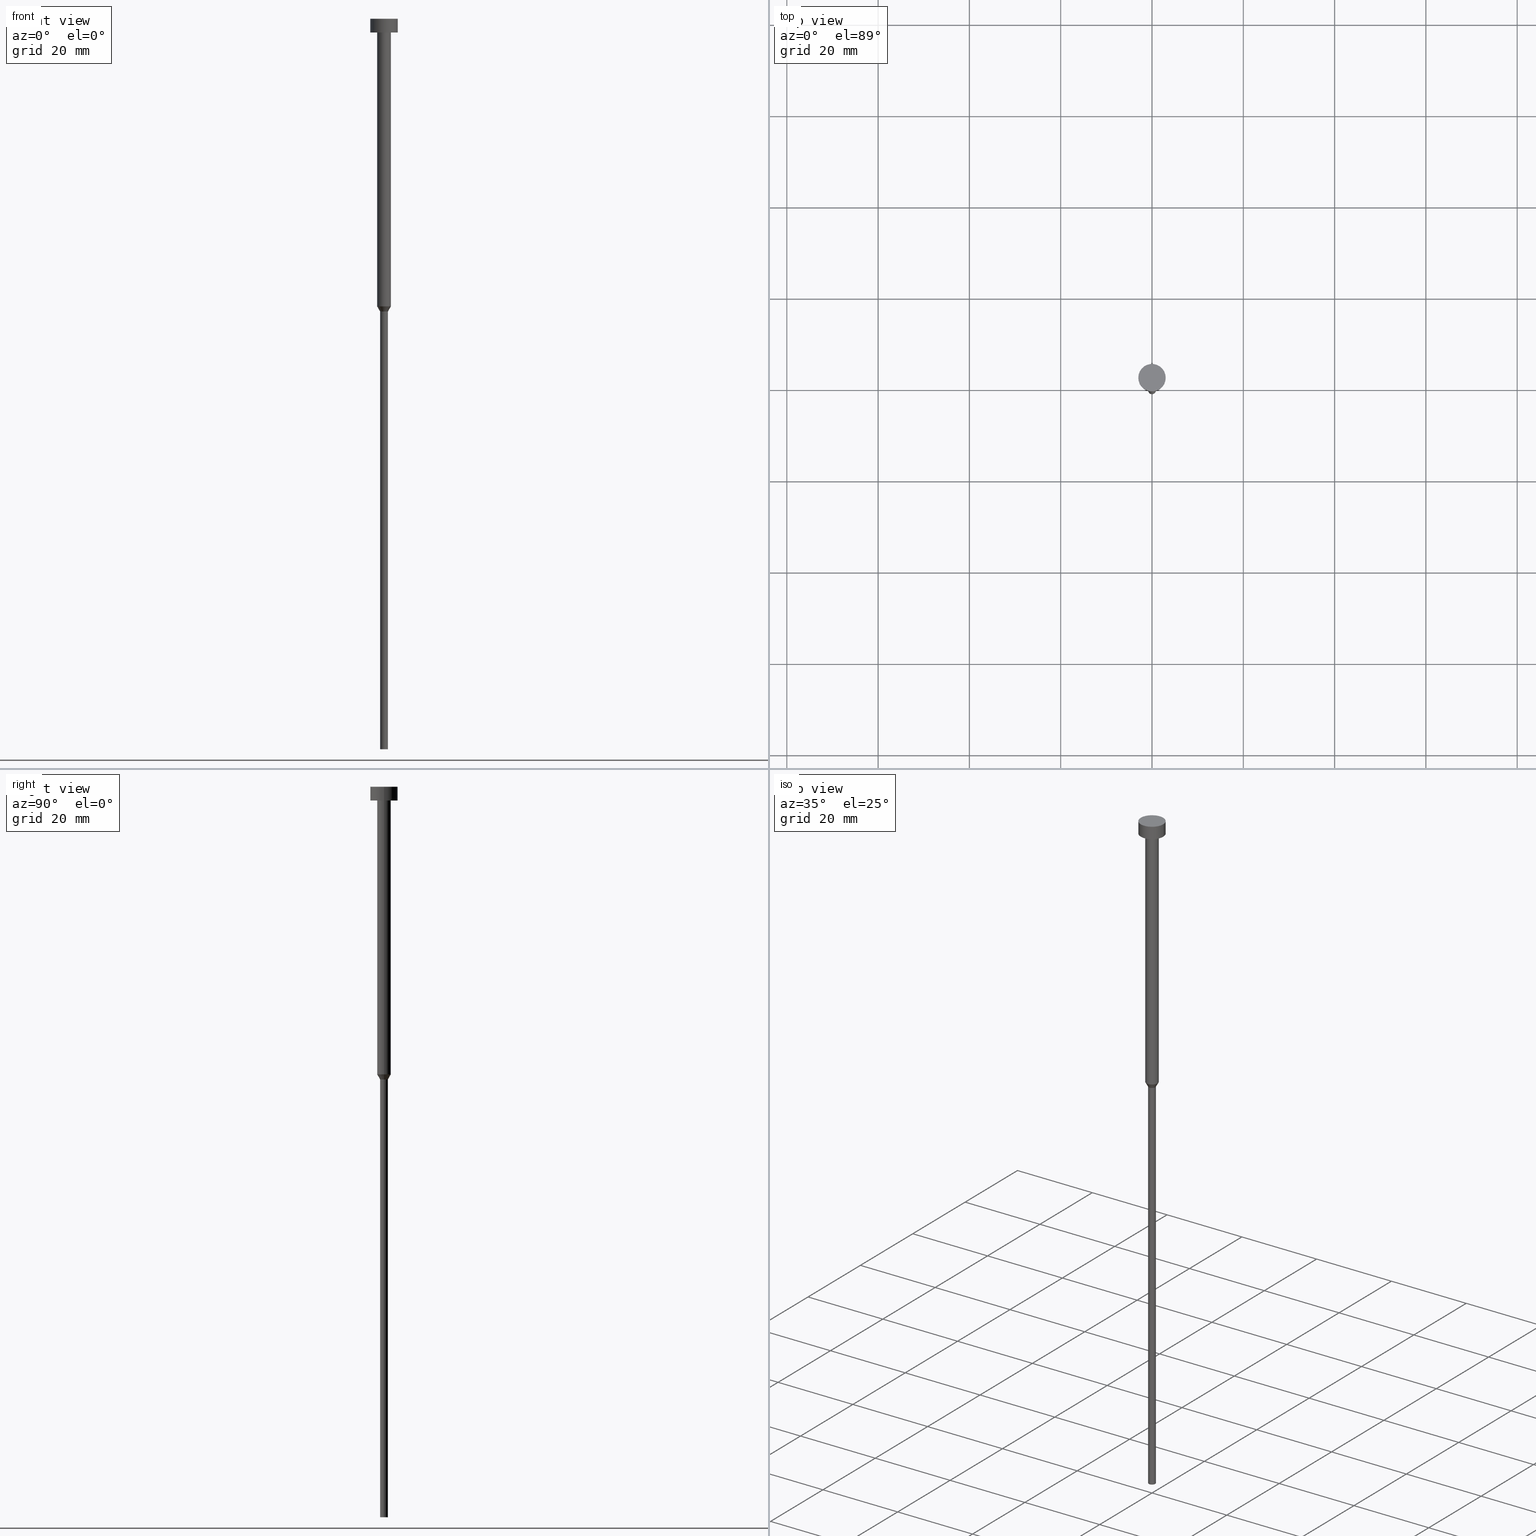
[diagram: canonical four-view strip — front | top / right | iso, engineering-drawing reading convention]
A machine part, canonical four-view strip (front | top / right | iso — engineering-drawing reading convention). The complete STEP part file that produces these views, byte-faithful:
ISO-10303-21;
HEADER;
FILE_DESCRIPTION (( 'STEP AP203' ),
    '1' );
FILE_NAME ('a8fe.STEP',
    '2023-02-13T10:02:04',
    ( '' ),
    ( '' ),
    'SwSTEP 2.0',
    'SolidWorks 2019',
    '' );
FILE_SCHEMA (( 'CONFIG_CONTROL_DESIGN' ));
ENDSEC;

DATA;
#1 = CYLINDRICAL_SURFACE ( 'NONE', #282, 0.8499999999999998668 ) ;
#2 = APPROVAL_DATE_TIME ( #190, #56 ) ;
#3 = EDGE_CURVE ( 'NONE', #101, #25, #151, .T. ) ;
#4 = VECTOR ( 'NONE', #251, 1000.000000000000000 ) ;
#5 = CYLINDRICAL_SURFACE ( 'NONE', #294, 3.000000000000000000 ) ;
#6 = CARTESIAN_POINT ( 'NONE',  ( -1.500000000000000000, 1.836970198721029934E-16, 0.000000000000000000 ) ) ;
#7 = AXIS2_PLACEMENT_3D ( 'NONE', #332, #173, #274 ) ;
#8 = PERSON_AND_ORGANIZATION ( #279, #80 ) ;
#9 = DATE_AND_TIME ( #253, #275 ) ;
#10 = EDGE_CURVE ( 'NONE', #290, #165, #296, .T. ) ;
#11 = DIRECTION ( 'NONE',  ( 1.000000000000000000, 0.000000000000000000, 0.000000000000000000 ) ) ;
#12 = APPROVAL_STATUS ( 'not_yet_approved' ) ;
#13 = DIRECTION ( 'NONE',  ( 0.000000000000000000, -0.000000000000000000, 1.000000000000000000 ) ) ;
#14 = ORIENTED_EDGE ( 'NONE', *, *, #195, .F. ) ;
#15 = PERSON_AND_ORGANIZATION_ROLE ( 'design_owner' ) ;
#16 = PLANE ( 'NONE',  #29 ) ;
#17 = COORDINATED_UNIVERSAL_TIME_OFFSET ( 1, 0, .AHEAD. ) ;
#18 = CARTESIAN_POINT ( 'NONE',  ( 0.000000000000000000, 0.000000000000000000, -3.000000000000000888 ) ) ;
#19 = EDGE_LOOP ( 'NONE', ( #164, #269 ) ) ;
#20 = EDGE_CURVE ( 'NONE', #290, #238, #250, .T. ) ;
#21 = CARTESIAN_POINT ( 'NONE',  ( 3.000000000000000000, 0.000000000000000000, 0.000000000000000000 ) ) ;
#22 = ORIENTED_EDGE ( 'NONE', *, *, #211, .F. ) ;
#23 = ORIENTED_EDGE ( 'NONE', *, *, #287, .T. ) ;
#24 = ADVANCED_FACE ( 'NONE', ( #52 ), #1, .T. ) ;
#25 = VERTEX_POINT ( 'NONE', #81 ) ;
#26 = APPROVAL_PERSON_ORGANIZATION ( #256, #56, #94 ) ;
#27 = DIRECTION ( 'NONE',  ( -0.000000000000000000, -0.000000000000000000, 1.000000000000000000 ) ) ;
#28 = SHAPE_DEFINITION_REPRESENTATION ( #288, #219 ) ;
#29 = AXIS2_PLACEMENT_3D ( 'NONE', #237, #254, #46 ) ;
#30 = PLANE ( 'NONE',  #102 ) ;
#31 = AXIS2_PLACEMENT_3D ( 'NONE', #207, #286, #65 ) ;
#32 = CARTESIAN_POINT ( 'NONE',  ( -1.500000000000000000, 1.836970198721029934E-16, -63.00000000000000000 ) ) ;
#33 = ADVANCED_FACE ( 'NONE', ( #197 ), #343, .T. ) ;
#34 = AXIS2_PLACEMENT_3D ( 'NONE', #299, #55, #272 ) ;
#35 = DIRECTION ( 'NONE',  ( 1.000000000000000000, 0.000000000000000000, 0.000000000000000000 ) ) ;
#36 = DIRECTION ( 'NONE',  ( 1.000000000000000000, 0.000000000000000000, 0.000000000000000000 ) ) ;
#37 = DIRECTION ( 'NONE',  ( 1.000000000000000000, 0.000000000000000000, 0.000000000000000000 ) ) ;
#38 = DATE_TIME_ROLE ( 'classification_date' ) ;
#39 = DIRECTION ( 'NONE',  ( -0.000000000000000000, -0.000000000000000000, 1.000000000000000000 ) ) ;
#40 = EDGE_LOOP ( 'NONE', ( #210, #310, #266, #162 ) ) ;
#41 =( GEOMETRIC_REPRESENTATION_CONTEXT ( 3 ) GLOBAL_UNCERTAINTY_ASSIGNED_CONTEXT ( ( #84 ) ) GLOBAL_UNIT_ASSIGNED_CONTEXT ( ( #344, #239, #92 ) ) REPRESENTATION_CONTEXT ( 'NONE', 'WORKASPACE' ) );
#42 = DIRECTION ( 'NONE',  ( -0.000000000000000000, -0.000000000000000000, 1.000000000000000000 ) ) ;
#43 = CARTESIAN_POINT ( 'NONE',  ( 0.000000000000000000, 0.000000000000000000, -3.000000000000000888 ) ) ;
#44 = EDGE_LOOP ( 'NONE', ( #70, #182 ) ) ;
#45 = APPROVAL_STATUS ( 'not_yet_approved' ) ;
#46 = DIRECTION ( 'NONE',  ( -1.000000000000000000, 0.000000000000000000, -0.000000000000000000 ) ) ;
#47 = ORIENTED_EDGE ( 'NONE', *, *, #106, .F. ) ;
#48 = DIRECTION ( 'NONE',  ( 1.000000000000000000, 0.000000000000000000, 0.000000000000000000 ) ) ;
#49 = CARTESIAN_POINT ( 'NONE',  ( 0.000000000000000000, 0.000000000000000000, -160.0000000000000000 ) ) ;
#50 = ORIENTED_EDGE ( 'NONE', *, *, #247, .F. ) ;
#51 = EDGE_CURVE ( 'NONE', #25, #313, #217, .T. ) ;
#52 = FACE_OUTER_BOUND ( 'NONE', #53, .T. ) ;
#53 = EDGE_LOOP ( 'NONE', ( #268, #105, #22, #50 ) ) ;
#54 = CIRCLE ( 'NONE', #303, 0.8499999999999998668 ) ;
#55 = DIRECTION ( 'NONE',  ( -0.000000000000000000, -0.000000000000000000, 1.000000000000000000 ) ) ;
#56 = APPROVAL ( #12, 'NEUR�EN�' ) ;
#57 = DIRECTION ( 'NONE',  ( 1.000000000000000000, 0.000000000000000000, 0.000000000000000000 ) ) ;
#58 = CIRCLE ( 'NONE', #314, 0.8499999999999999778 ) ;
#59 = EDGE_CURVE ( 'NONE', #78, #185, #69, .T. ) ;
#60 = DIRECTION ( 'NONE',  ( -0.000000000000000000, -0.000000000000000000, 1.000000000000000000 ) ) ;
#61 = CIRCLE ( 'NONE', #335, 1.500000000000000000 ) ;
#62 = AXIS2_PLACEMENT_3D ( 'NONE', #18, #281, #37 ) ;
#63 = EDGE_CURVE ( 'NONE', #101, #75, #64, .T. ) ;
#64 = LINE ( 'NONE', #66, #222 ) ;
#65 = DIRECTION ( 'NONE',  ( 1.000000000000000000, 0.000000000000000000, 0.000000000000000000 ) ) ;
#66 = CARTESIAN_POINT ( 'NONE',  ( -3.000000000000000000, 3.673940397442059868E-16, 0.000000000000000000 ) ) ;
#67 = ORIENTED_EDGE ( 'NONE', *, *, #195, .T. ) ;
#68 = AXIS2_PLACEMENT_3D ( 'NONE', #167, #324, #244 ) ;
#69 = LINE ( 'NONE', #74, #301 ) ;
#70 = ORIENTED_EDGE ( 'NONE', *, *, #302, .F. ) ;
#71 = LOCAL_TIME ( 11, 2, 4.000000000000000000, #113 ) ;
#72 = DATE_TIME_ROLE ( 'creation_date' ) ;
#73 = EDGE_CURVE ( 'NONE', #160, #165, #61, .T. ) ;
#74 = CARTESIAN_POINT ( 'NONE',  ( -0.8499999999999998668, 1.040949779275250017E-16, 0.000000000000000000 ) ) ;
#75 = VERTEX_POINT ( 'NONE', #284 ) ;
#76 = PERSON_AND_ORGANIZATION ( #279, #80 ) ;
#77 = CARTESIAN_POINT ( 'NONE',  ( 0.000000000000000000, 0.000000000000000000, -64.12583302491977122 ) ) ;
#78 = VERTEX_POINT ( 'NONE', #289 ) ;
#79 = EDGE_CURVE ( 'NONE', #185, #238, #187, .T. ) ;
#80 = ORGANIZATION ( 'NEUR�EN�', 'NEUR�EN�', '' ) ;
#81 = CARTESIAN_POINT ( 'NONE',  ( 3.000000000000000000, 0.000000000000000000, -3.000000000000000888 ) ) ;
#82 = EDGE_LOOP ( 'NONE', ( #194, #134, #246, #14 ) ) ;
#83 = DIRECTION ( 'NONE',  ( 1.000000000000000000, 0.000000000000000000, 0.000000000000000000 ) ) ;
#84 = UNCERTAINTY_MEASURE_WITH_UNIT (LENGTH_MEASURE( 1.000000000000000082E-05 ), #344, 'distance_accuracy_value', 'NONE');
#85 = LOCAL_TIME ( 11, 2, 4.000000000000000000, #132 ) ;
#86 = ADVANCED_FACE ( 'NONE', ( #159 ), #16, .T. ) ;
#87 = DIRECTION ( 'NONE',  ( -0.000000000000000000, -0.000000000000000000, 1.000000000000000000 ) ) ;
#88 = ADVANCED_FACE ( 'NONE', ( #95 ), #345, .T. ) ;
#89 = CARTESIAN_POINT ( 'NONE',  ( 0.000000000000000000, -3.000000000000000000, -3.000000000000000888 ) ) ;
#90 = CARTESIAN_POINT ( 'NONE',  ( 0.8499999999999999778, 0.000000000000000000, -64.12583302491977122 ) ) ;
#91 = CIRCLE ( 'NONE', #337, 3.000000000000000000 ) ;
#92 =( NAMED_UNIT ( * ) SI_UNIT ( $, .STERADIAN. ) SOLID_ANGLE_UNIT ( ) );
#93 = DIRECTION ( 'NONE',  ( 1.000000000000000000, 0.000000000000000000, 0.000000000000000000 ) ) ;
#94 = APPROVAL_ROLE ( '' ) ;
#95 = FACE_OUTER_BOUND ( 'NONE', #317, .T. ) ;
#96 = ORIENTED_EDGE ( 'NONE', *, *, #10, .T. ) ;
#97 = AXIS2_PLACEMENT_3D ( 'NONE', #169, #143, #111 ) ;
#98 = CC_DESIGN_PERSON_AND_ORGANIZATION_ASSIGNMENT ( #8, #15, ( #339 ) ) ;
#99 = DIRECTION ( 'NONE',  ( 1.000000000000000000, 0.000000000000000000, 0.000000000000000000 ) ) ;
#100 = DIRECTION ( 'NONE',  ( 1.000000000000000000, 0.000000000000000000, 0.000000000000000000 ) ) ;
#101 = VERTEX_POINT ( 'NONE', #152 ) ;
#102 = AXIS2_PLACEMENT_3D ( 'NONE', #89, #148, #223 ) ;
#103 = PERSON_AND_ORGANIZATION ( #279, #80 ) ;
#104 = PLANE ( 'NONE',  #255 ) ;
#105 = ORIENTED_EDGE ( 'NONE', *, *, #59, .T. ) ;
#106 = EDGE_CURVE ( 'NONE', #185, #354, #214, .T. ) ;
#107 = ORIENTED_EDGE ( 'NONE', *, *, #247, .T. ) ;
#108 = ORIENTED_EDGE ( 'NONE', *, *, #306, .F. ) ;
#109 = VECTOR ( 'NONE', #248, 1000.000000000000000 ) ;
#110 = EDGE_LOOP ( 'NONE', ( #158, #178, #352, #130 ) ) ;
#111 = DIRECTION ( 'NONE',  ( 1.000000000000000000, 0.000000000000000000, 0.000000000000000000 ) ) ;
#112 = APPLICATION_CONTEXT ( 'configuration controlled 3d designs of mechanical parts and assemblies' ) ;
#113 = COORDINATED_UNIVERSAL_TIME_OFFSET ( 1, 0, .AHEAD. ) ;
#114 = CONICAL_SURFACE ( 'NONE', #168, 1.500000000000000000, 0.5235987755983000369 ) ;
#115 = CARTESIAN_POINT ( 'NONE',  ( 0.8499999999999998668, 0.000000000000000000, 0.000000000000000000 ) ) ;
#116 = ADVANCED_FACE ( 'NONE', ( #205 ), #104, .T. ) ;
#117 = CALENDAR_DATE ( 2023, 13, 2 ) ;
#118 = FACE_OUTER_BOUND ( 'NONE', #323, .T. ) ;
#119 = CARTESIAN_POINT ( 'NONE',  ( 1.500000000000000000, 0.000000000000000000, -63.00000000000000000 ) ) ;
#120 = CIRCLE ( 'NONE', #265, 3.000000000000000000 ) ;
#121 = AXIS2_PLACEMENT_3D ( 'NONE', #176, #319, #100 ) ;
#122 = DIRECTION ( 'NONE',  ( 1.000000000000000000, 0.000000000000000000, 0.000000000000000000 ) ) ;
#123 = PRODUCT_DEFINITION ( 'NEZN�M�', '', #191, #328 ) ;
#124 = APPLICATION_PROTOCOL_DEFINITION ( 'international standard', 'config_control_design', 1994, #112 ) ;
#125 = DIRECTION ( 'NONE',  ( -0.000000000000000000, -0.000000000000000000, 1.000000000000000000 ) ) ;
#126 = AXIS2_PLACEMENT_3D ( 'NONE', #292, #125, #48 ) ;
#127 = MECHANICAL_CONTEXT ( 'NONE', #112, 'mechanical' ) ;
#128 = DIRECTION ( 'NONE',  ( -0.000000000000000000, -0.000000000000000000, 1.000000000000000000 ) ) ;
#129 = CC_DESIGN_PERSON_AND_ORGANIZATION_ASSIGNMENT ( #76, #252, ( #191 ) ) ;
#130 = ORIENTED_EDGE ( 'NONE', *, *, #287, .F. ) ;
#131 = EDGE_LOOP ( 'NONE', ( #215, #342 ) ) ;
#132 = COORDINATED_UNIVERSAL_TIME_OFFSET ( 1, 0, .AHEAD. ) ;
#133 = CARTESIAN_POINT ( 'NONE',  ( -1.500000000000000000, 1.836970198721029934E-16, -3.000000000000000888 ) ) ;
#134 = ORIENTED_EDGE ( 'NONE', *, *, #3, .T. ) ;
#135 = ADVANCED_FACE ( 'NONE', ( #208 ), #263, .T. ) ;
#136 = CARTESIAN_POINT ( 'NONE',  ( -1.500000000000000000, 1.836970198721029934E-16, -63.00000000000000000 ) ) ;
#137 = EDGE_LOOP ( 'NONE', ( #243, #240, #141, #258 ) ) ;
#138 = EDGE_LOOP ( 'NONE', ( #196, #192, #96, #261 ) ) ;
#139 = VECTOR ( 'NONE', #157, 1000.000000000000000 ) ;
#140 = DIRECTION ( 'NONE',  ( 1.000000000000000000, 0.000000000000000000, 0.000000000000000000 ) ) ;
#141 = ORIENTED_EDGE ( 'NONE', *, *, #188, .F. ) ;
#142 = AXIS2_PLACEMENT_3D ( 'NONE', #49, #193, #140 ) ;
#143 = DIRECTION ( 'NONE',  ( -0.000000000000000000, -0.000000000000000000, 1.000000000000000000 ) ) ;
#144 = EDGE_CURVE ( 'NONE', #165, #160, #216, .T. ) ;
#145 = CLOSED_SHELL ( 'NONE', ( #325, #135, #33, #24, #86, #88, #276, #166, #225, #273, #116 ) ) ;
#146 = CARTESIAN_POINT ( 'NONE',  ( 0.000000000000000000, 0.000000000000000000, -3.000000000000000888 ) ) ;
#147 = DIRECTION ( 'NONE',  ( -0.000000000000000000, -0.000000000000000000, 1.000000000000000000 ) ) ;
#148 = DIRECTION ( 'NONE',  ( 0.000000000000000000, 0.000000000000000000, -1.000000000000000000 ) ) ;
#149 = CARTESIAN_POINT ( 'NONE',  ( 3.000000000000000000, 0.000000000000000000, -3.673940397442059868E-16 ) ) ;
#150 = DATE_AND_TIME ( #283, #347 ) ;
#151 = CIRCLE ( 'NONE', #68, 3.000000000000000000 ) ;
#152 = CARTESIAN_POINT ( 'NONE',  ( -3.000000000000000000, 3.673940397442059868E-16, -3.000000000000000888 ) ) ;
#153 = CYLINDRICAL_SURFACE ( 'NONE', #126, 1.500000000000000000 ) ;
#154 = CIRCLE ( 'NONE', #7, 1.500000000000000000 ) ;
#155 = APPROVAL_DATE_TIME ( #229, #293 ) ;
#156 = MANIFOLD_SOLID_BREP ( 'Rotovat1', #145 ) ;
#157 = DIRECTION ( 'NONE',  ( -0.000000000000000000, -0.000000000000000000, 1.000000000000000000 ) ) ;
#158 = ORIENTED_EDGE ( 'NONE', *, *, #211, .T. ) ;
#159 = FACE_OUTER_BOUND ( 'NONE', #44, .T. ) ;
#160 = VERTEX_POINT ( 'NONE', #133 ) ;
#161 = CARTESIAN_POINT ( 'NONE',  ( -0.8500000000000000888, 1.040949779275250263E-16, -64.12583302491977122 ) ) ;
#162 = ORIENTED_EDGE ( 'NONE', *, *, #10, .F. ) ;
#163 = CIRCLE ( 'NONE', #322, 3.000000000000000000 ) ;
#164 = ORIENTED_EDGE ( 'NONE', *, *, #333, .F. ) ;
#165 = VERTEX_POINT ( 'NONE', #349 ) ;
#166 = ADVANCED_FACE ( 'NONE', ( #212 ), #153, .T. ) ;
#167 = CARTESIAN_POINT ( 'NONE',  ( 0.000000000000000000, 0.000000000000000000, -3.000000000000000888 ) ) ;
#168 = AXIS2_PLACEMENT_3D ( 'NONE', #172, #87, #122 ) ;
#169 = CARTESIAN_POINT ( 'NONE',  ( 0.000000000000000000, 0.000000000000000000, -63.00000000000000000 ) ) ;
#170 = CC_DESIGN_APPROVAL ( #280, ( #191 ) ) ;
#171 = FACE_OUTER_BOUND ( 'NONE', #19, .T. ) ;
#172 = CARTESIAN_POINT ( 'NONE',  ( 0.000000000000000000, 0.000000000000000000, -63.00000000000000000 ) ) ;
#173 = DIRECTION ( 'NONE',  ( -0.000000000000000000, -0.000000000000000000, 1.000000000000000000 ) ) ;
#174 = LINE ( 'NONE', #115, #109 ) ;
#175 = APPROVAL_STATUS ( 'not_yet_approved' ) ;
#176 = CARTESIAN_POINT ( 'NONE',  ( 0.000000000000000000, 0.000000000000000000, 0.000000000000000000 ) ) ;
#177 = DIRECTION ( 'NONE',  ( -0.000000000000000000, -0.000000000000000000, 1.000000000000000000 ) ) ;
#178 = ORIENTED_EDGE ( 'NONE', *, *, #79, .T. ) ;
#179 = APPLICATION_PROTOCOL_DEFINITION ( 'international standard', 'config_control_design', 1994, #329 ) ;
#180 = DIRECTION ( 'NONE',  ( 1.000000000000000000, 0.000000000000000000, 0.000000000000000000 ) ) ;
#181 = SECURITY_CLASSIFICATION ( '', '', #336 ) ;
#182 = ORIENTED_EDGE ( 'NONE', *, *, #218, .F. ) ;
#183 = PERSON_AND_ORGANIZATION ( #279, #80 ) ;
#184 = CARTESIAN_POINT ( 'NONE',  ( 0.000000000000000000, 0.000000000000000000, -1.836970198721029934E-16 ) ) ;
#185 = VERTEX_POINT ( 'NONE', #161 ) ;
#186 = PERSON_AND_ORGANIZATION ( #279, #80 ) ;
#187 = LINE ( 'NONE', #136, #189 ) ;
#188 = EDGE_CURVE ( 'NONE', #313, #75, #163, .T. ) ;
#189 = VECTOR ( 'NONE', #241, 1000.000000000000000 ) ;
#190 = DATE_AND_TIME ( #117, #71 ) ;
#191 = PRODUCT_DEFINITION_FORMATION_WITH_SPECIFIED_SOURCE ( 'LIBOVOLN�', '', #339, .NOT_KNOWN. ) ;
#192 = ORIENTED_EDGE ( 'NONE', *, *, #306, .T. ) ;
#193 = DIRECTION ( 'NONE',  ( -0.000000000000000000, -0.000000000000000000, 1.000000000000000000 ) ) ;
#194 = ORIENTED_EDGE ( 'NONE', *, *, #63, .F. ) ;
#195 = EDGE_CURVE ( 'NONE', #75, #313, #120, .T. ) ;
#196 = ORIENTED_EDGE ( 'NONE', *, *, #242, .F. ) ;
#197 = FACE_OUTER_BOUND ( 'NONE', #110, .T. ) ;
#198 = LINE ( 'NONE', #119, #4 ) ;
#199 = FACE_OUTER_BOUND ( 'NONE', #137, .T. ) ;
#200 = PERSON_AND_ORGANIZATION ( #279, #80 ) ;
#201 = APPROVAL_PERSON_ORGANIZATION ( #186, #293, #291 ) ;
#202 = DIRECTION ( 'NONE',  ( 1.000000000000000000, 0.000000000000000000, 0.000000000000000000 ) ) ;
#203 = COORDINATED_UNIVERSAL_TIME_OFFSET ( 1, 0, .AHEAD. ) ;
#204 = CARTESIAN_POINT ( 'NONE',  ( 0.000000000000000000, 0.000000000000000000, -64.12583302491977122 ) ) ;
#205 = FACE_OUTER_BOUND ( 'NONE', #346, .T. ) ;
#206 = ORIENTED_EDGE ( 'NONE', *, *, #59, .F. ) ;
#207 = CARTESIAN_POINT ( 'NONE',  ( 0.000000000000000000, 0.000000000000000000, 0.000000000000000000 ) ) ;
#208 = FACE_OUTER_BOUND ( 'NONE', #40, .T. ) ;
#209 = CC_DESIGN_APPROVAL ( #56, ( #181 ) ) ;
#210 = ORIENTED_EDGE ( 'NONE', *, *, #20, .T. ) ;
#211 = EDGE_CURVE ( 'NONE', #354, #185, #58, .T. ) ;
#212 = FACE_OUTER_BOUND ( 'NONE', #138, .T. ) ;
#213 = VERTEX_POINT ( 'NONE', #320 ) ;
#214 = CIRCLE ( 'NONE', #267, 0.8499999999999999778 ) ;
#215 = ORIENTED_EDGE ( 'NONE', *, *, #144, .T. ) ;
#216 = CIRCLE ( 'NONE', #62, 1.500000000000000000 ) ;
#217 = LINE ( 'NONE', #21, #139 ) ;
#218 = EDGE_CURVE ( 'NONE', #78, #213, #226, .T. ) ;
#219 = ADVANCED_BREP_SHAPE_REPRESENTATION ( 'a8fe', ( #156, #31 ), #41 ) ;
#220 = CARTESIAN_POINT ( 'NONE',  ( 1.500000000000000000, 0.000000000000000000, 0.000000000000000000 ) ) ;
#221 = CARTESIAN_POINT ( 'NONE',  ( 0.000000000000000000, 0.000000000000000000, 0.000000000000000000 ) ) ;
#222 = VECTOR ( 'NONE', #177, 1000.000000000000000 ) ;
#223 = DIRECTION ( 'NONE',  ( -1.000000000000000000, 0.000000000000000000, -0.000000000000000000 ) ) ;
#224 = FACE_OUTER_BOUND ( 'NONE', #82, .T. ) ;
#225 = ADVANCED_FACE ( 'NONE', ( #245, #171 ), #30, .T. ) ;
#226 = CIRCLE ( 'NONE', #142, 0.8499999999999998668 ) ;
#227 = DIRECTION ( 'NONE',  ( -0.000000000000000000, -0.000000000000000000, 1.000000000000000000 ) ) ;
#228 = CARTESIAN_POINT ( 'NONE',  ( 0.000000000000000000, 0.000000000000000000, -160.0000000000000000 ) ) ;
#229 = DATE_AND_TIME ( #235, #298 ) ;
#230 = CC_DESIGN_PERSON_AND_ORGANIZATION_ASSIGNMENT ( #103, #318, ( #191 ) ) ;
#231 = APPROVAL_DATE_TIME ( #233, #280 ) ;
#232 = DIRECTION ( 'NONE',  ( -0.000000000000000000, -0.000000000000000000, 1.000000000000000000 ) ) ;
#233 = DATE_AND_TIME ( #348, #85 ) ;
#234 = DIRECTION ( 'NONE',  ( -0.000000000000000000, -0.000000000000000000, 1.000000000000000000 ) ) ;
#235 = CALENDAR_DATE ( 2023, 13, 2 ) ;
#236 = VECTOR ( 'NONE', #27, 1000.000000000000000 ) ;
#237 = CARTESIAN_POINT ( 'NONE',  ( 0.000000000000000000, 0.000000000000000000, -160.0000000000000000 ) ) ;
#238 = VERTEX_POINT ( 'NONE', #32 ) ;
#239 =( NAMED_UNIT ( * ) PLANE_ANGLE_UNIT ( ) SI_UNIT ( $, .RADIAN. ) );
#240 = ORIENTED_EDGE ( 'NONE', *, *, #63, .T. ) ;
#241 = DIRECTION ( 'NONE',  ( -0.5000000000000009992, 6.123233995736778362E-17, 0.8660254037844380415 ) ) ;
#242 = EDGE_CURVE ( 'NONE', #238, #160, #334, .T. ) ;
#243 = ORIENTED_EDGE ( 'NONE', *, *, #333, .T. ) ;
#244 = DIRECTION ( 'NONE',  ( 1.000000000000000000, 0.000000000000000000, 0.000000000000000000 ) ) ;
#245 = FACE_BOUND ( 'NONE', #131, .T. ) ;
#246 = ORIENTED_EDGE ( 'NONE', *, *, #51, .T. ) ;
#247 = EDGE_CURVE ( 'NONE', #213, #354, #174, .T. ) ;
#248 = DIRECTION ( 'NONE',  ( -0.000000000000000000, -0.000000000000000000, 1.000000000000000000 ) ) ;
#249 = CC_DESIGN_PERSON_AND_ORGANIZATION_ASSIGNMENT ( #200, #307, ( #181 ) ) ;
#250 = CIRCLE ( 'NONE', #97, 1.500000000000000000 ) ;
#251 = DIRECTION ( 'NONE',  ( 0.5000000000000009992, 0.000000000000000000, 0.8660254037844380415 ) ) ;
#252 = PERSON_AND_ORGANIZATION_ROLE ( 'design_supplier' ) ;
#253 = CALENDAR_DATE ( 2023, 13, 2 ) ;
#254 = DIRECTION ( 'NONE',  ( 0.000000000000000000, 0.000000000000000000, -1.000000000000000000 ) ) ;
#255 = AXIS2_PLACEMENT_3D ( 'NONE', #184, #13, #11 ) ;
#256 = PERSON_AND_ORGANIZATION ( #279, #80 ) ;
#257 = CARTESIAN_POINT ( 'NONE',  ( 0.000000000000000000, 0.000000000000000000, -3.673940397442059868E-16 ) ) ;
#258 = ORIENTED_EDGE ( 'NONE', *, *, #51, .F. ) ;
#259 = DIRECTION ( 'NONE',  ( -0.000000000000000000, -0.000000000000000000, 1.000000000000000000 ) ) ;
#260 = CC_DESIGN_PERSON_AND_ORGANIZATION_ASSIGNMENT ( #312, #315, ( #123 ) ) ;
#261 = ORIENTED_EDGE ( 'NONE', *, *, #73, .F. ) ;
#262 = APPROVAL_ROLE ( '' ) ;
#263 = CYLINDRICAL_SURFACE ( 'NONE', #327, 1.500000000000000000 ) ;
#264 = DIRECTION ( 'NONE',  ( 1.000000000000000000, 0.000000000000000000, 0.000000000000000000 ) ) ;
#265 = AXIS2_PLACEMENT_3D ( 'NONE', #338, #128, #93 ) ;
#266 = ORIENTED_EDGE ( 'NONE', *, *, #144, .F. ) ;
#267 = AXIS2_PLACEMENT_3D ( 'NONE', #77, #316, #308 ) ;
#268 = ORIENTED_EDGE ( 'NONE', *, *, #302, .T. ) ;
#269 = ORIENTED_EDGE ( 'NONE', *, *, #3, .F. ) ;
#270 = VECTOR ( 'NONE', #147, 1000.000000000000000 ) ;
#271 = ORIENTED_EDGE ( 'NONE', *, *, #188, .T. ) ;
#272 = DIRECTION ( 'NONE',  ( 1.000000000000000000, 0.000000000000000000, 0.000000000000000000 ) ) ;
#273 = ADVANCED_FACE ( 'NONE', ( #224 ), #5, .T. ) ;
#274 = DIRECTION ( 'NONE',  ( 1.000000000000000000, 0.000000000000000000, 0.000000000000000000 ) ) ;
#275 = LOCAL_TIME ( 11, 2, 4.000000000000000000, #340 ) ;
#276 = ADVANCED_FACE ( 'NONE', ( #118 ), #114, .T. ) ;
#277 = CC_DESIGN_SECURITY_CLASSIFICATION ( #181, ( #191 ) ) ;
#278 = CYLINDRICAL_SURFACE ( 'NONE', #353, 3.000000000000000000 ) ;
#279 = PERSON ( 'NEUR�EN�', 'NEUR�EN�', 'NEUR�EN�', ('NEUR�EN�'), ('NEUR�EN�'), ('NEUR�EN�') ) ;
#280 = APPROVAL ( #45, 'NEUR�EN�' ) ;
#281 = DIRECTION ( 'NONE',  ( -0.000000000000000000, -0.000000000000000000, 1.000000000000000000 ) ) ;
#282 = AXIS2_PLACEMENT_3D ( 'NONE', #221, #326, #83 ) ;
#283 = CALENDAR_DATE ( 2023, 13, 2 ) ;
#284 = CARTESIAN_POINT ( 'NONE',  ( -3.000000000000000000, 3.673940397442059868E-16, -3.673940397442059868E-16 ) ) ;
#285 = CC_DESIGN_APPROVAL ( #293, ( #123 ) ) ;
#286 = DIRECTION ( 'NONE',  ( 0.000000000000000000, 0.000000000000000000, 1.000000000000000000 ) ) ;
#287 = EDGE_CURVE ( 'NONE', #354, #290, #198, .T. ) ;
#288 = PRODUCT_DEFINITION_SHAPE ( 'NONE', 'NONE',  #123 ) ;
#289 = CARTESIAN_POINT ( 'NONE',  ( -0.8499999999999998668, 1.040949779275250017E-16, -160.0000000000000000 ) ) ;
#290 = VERTEX_POINT ( 'NONE', #304 ) ;
#291 = APPROVAL_ROLE ( '' ) ;
#292 = CARTESIAN_POINT ( 'NONE',  ( 0.000000000000000000, 0.000000000000000000, 0.000000000000000000 ) ) ;
#293 = APPROVAL ( #175, 'NEUR�EN�' ) ;
#294 = AXIS2_PLACEMENT_3D ( 'NONE', #330, #60, #57 ) ;
#295 = ORIENTED_EDGE ( 'NONE', *, *, #79, .F. ) ;
#296 = LINE ( 'NONE', #220, #236 ) ;
#297 = ORIENTED_EDGE ( 'NONE', *, *, #106, .T. ) ;
#298 = LOCAL_TIME ( 11, 2, 4.000000000000000000, #203 ) ;
#299 = CARTESIAN_POINT ( 'NONE',  ( 0.000000000000000000, 0.000000000000000000, -63.00000000000000000 ) ) ;
#300 = DIRECTION ( 'NONE',  ( -0.000000000000000000, -0.000000000000000000, 1.000000000000000000 ) ) ;
#301 = VECTOR ( 'NONE', #309, 1000.000000000000000 ) ;
#302 = EDGE_CURVE ( 'NONE', #213, #78, #54, .T. ) ;
#303 = AXIS2_PLACEMENT_3D ( 'NONE', #228, #227, #35 ) ;
#304 = CARTESIAN_POINT ( 'NONE',  ( 1.500000000000000000, 0.000000000000000000, -63.00000000000000000 ) ) ;
#305 = CARTESIAN_POINT ( 'NONE',  ( 0.000000000000000000, 0.000000000000000000, 0.000000000000000000 ) ) ;
#306 = EDGE_CURVE ( 'NONE', #238, #290, #154, .T. ) ;
#307 = PERSON_AND_ORGANIZATION_ROLE ( 'classification_officer' ) ;
#308 = DIRECTION ( 'NONE',  ( 1.000000000000000000, 0.000000000000000000, 0.000000000000000000 ) ) ;
#309 = DIRECTION ( 'NONE',  ( -0.000000000000000000, -0.000000000000000000, 1.000000000000000000 ) ) ;
#310 = ORIENTED_EDGE ( 'NONE', *, *, #242, .T. ) ;
#311 = CC_DESIGN_DATE_AND_TIME_ASSIGNMENT ( #150, #72, ( #123 ) ) ;
#312 = PERSON_AND_ORGANIZATION ( #279, #80 ) ;
#313 = VERTEX_POINT ( 'NONE', #149 ) ;
#314 = AXIS2_PLACEMENT_3D ( 'NONE', #204, #234, #341 ) ;
#315 = PERSON_AND_ORGANIZATION_ROLE ( 'creator' ) ;
#316 = DIRECTION ( 'NONE',  ( -0.000000000000000000, -0.000000000000000000, 1.000000000000000000 ) ) ;
#317 = EDGE_LOOP ( 'NONE', ( #206, #321, #107, #47 ) ) ;
#318 = PERSON_AND_ORGANIZATION_ROLE ( 'creator' ) ;
#319 = DIRECTION ( 'NONE',  ( -0.000000000000000000, -0.000000000000000000, 1.000000000000000000 ) ) ;
#320 = CARTESIAN_POINT ( 'NONE',  ( 0.8499999999999998668, 0.000000000000000000, -160.0000000000000000 ) ) ;
#321 = ORIENTED_EDGE ( 'NONE', *, *, #218, .T. ) ;
#322 = AXIS2_PLACEMENT_3D ( 'NONE', #257, #232, #264 ) ;
#323 = EDGE_LOOP ( 'NONE', ( #295, #297, #23, #108 ) ) ;
#324 = DIRECTION ( 'NONE',  ( -0.000000000000000000, -0.000000000000000000, 1.000000000000000000 ) ) ;
#325 = ADVANCED_FACE ( 'NONE', ( #199 ), #278, .T. ) ;
#326 = DIRECTION ( 'NONE',  ( -0.000000000000000000, -0.000000000000000000, 1.000000000000000000 ) ) ;
#327 = AXIS2_PLACEMENT_3D ( 'NONE', #351, #39, #202 ) ;
#328 = DESIGN_CONTEXT ( 'detailed design', #329, 'design' ) ;
#329 = APPLICATION_CONTEXT ( 'configuration controlled 3d designs of mechanical parts and assemblies' ) ;
#330 = CARTESIAN_POINT ( 'NONE',  ( 0.000000000000000000, 0.000000000000000000, 0.000000000000000000 ) ) ;
#331 = APPROVAL_PERSON_ORGANIZATION ( #183, #280, #262 ) ;
#332 = CARTESIAN_POINT ( 'NONE',  ( 0.000000000000000000, 0.000000000000000000, -63.00000000000000000 ) ) ;
#333 = EDGE_CURVE ( 'NONE', #25, #101, #91, .T. ) ;
#334 = LINE ( 'NONE', #6, #270 ) ;
#335 = AXIS2_PLACEMENT_3D ( 'NONE', #43, #259, #180 ) ;
#336 = SECURITY_CLASSIFICATION_LEVEL ( 'unclassified' ) ;
#337 = AXIS2_PLACEMENT_3D ( 'NONE', #146, #42, #99 ) ;
#338 = CARTESIAN_POINT ( 'NONE',  ( 0.000000000000000000, 0.000000000000000000, -3.673940397442059868E-16 ) ) ;
#339 = PRODUCT ( 'a8fe', 'a8fe', '', ( #127 ) ) ;
#340 = COORDINATED_UNIVERSAL_TIME_OFFSET ( 1, 0, .AHEAD. ) ;
#341 = DIRECTION ( 'NONE',  ( 1.000000000000000000, 0.000000000000000000, 0.000000000000000000 ) ) ;
#342 = ORIENTED_EDGE ( 'NONE', *, *, #73, .T. ) ;
#343 = CONICAL_SURFACE ( 'NONE', #34, 1.500000000000000000, 0.5235987755983000369 ) ;
#344 =( LENGTH_UNIT ( ) NAMED_UNIT ( * ) SI_UNIT ( .MILLI., .METRE. ) );
#345 = CYLINDRICAL_SURFACE ( 'NONE', #121, 0.8499999999999998668 ) ;
#346 = EDGE_LOOP ( 'NONE', ( #271, #67 ) ) ;
#347 = LOCAL_TIME ( 11, 2, 4.000000000000000000, #17 ) ;
#348 = CALENDAR_DATE ( 2023, 13, 2 ) ;
#349 = CARTESIAN_POINT ( 'NONE',  ( 1.500000000000000000, 0.000000000000000000, -3.000000000000000888 ) ) ;
#350 = PRODUCT_RELATED_PRODUCT_CATEGORY ( 'detail', '', ( #339 ) ) ;
#351 = CARTESIAN_POINT ( 'NONE',  ( 0.000000000000000000, 0.000000000000000000, 0.000000000000000000 ) ) ;
#352 = ORIENTED_EDGE ( 'NONE', *, *, #20, .F. ) ;
#353 = AXIS2_PLACEMENT_3D ( 'NONE', #305, #300, #36 ) ;
#354 = VERTEX_POINT ( 'NONE', #90 ) ;
#355 = CC_DESIGN_DATE_AND_TIME_ASSIGNMENT ( #9, #38, ( #181 ) ) ;
ENDSEC;
END-ISO-10303-21;
